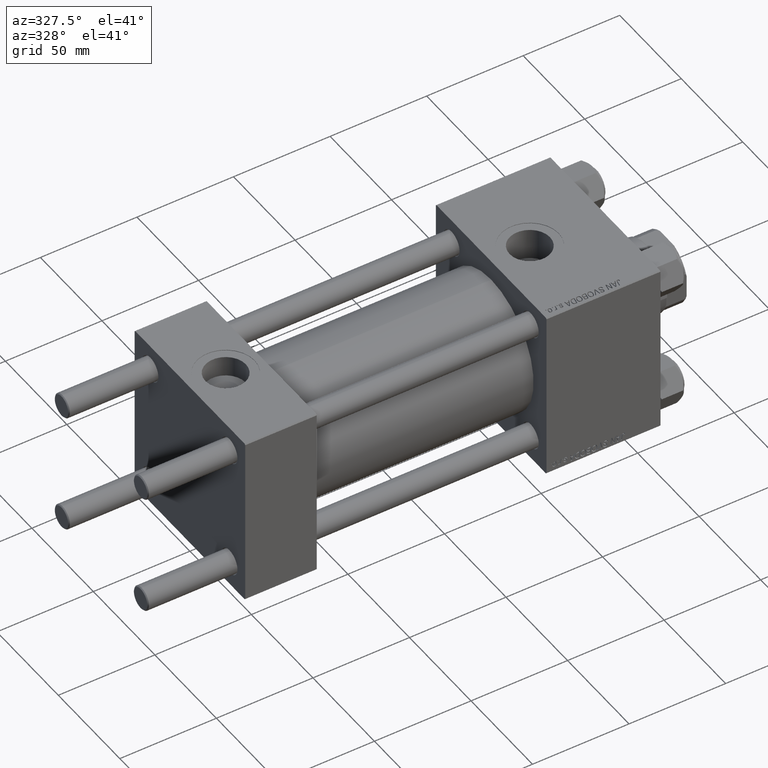
[diagram: clean part render]
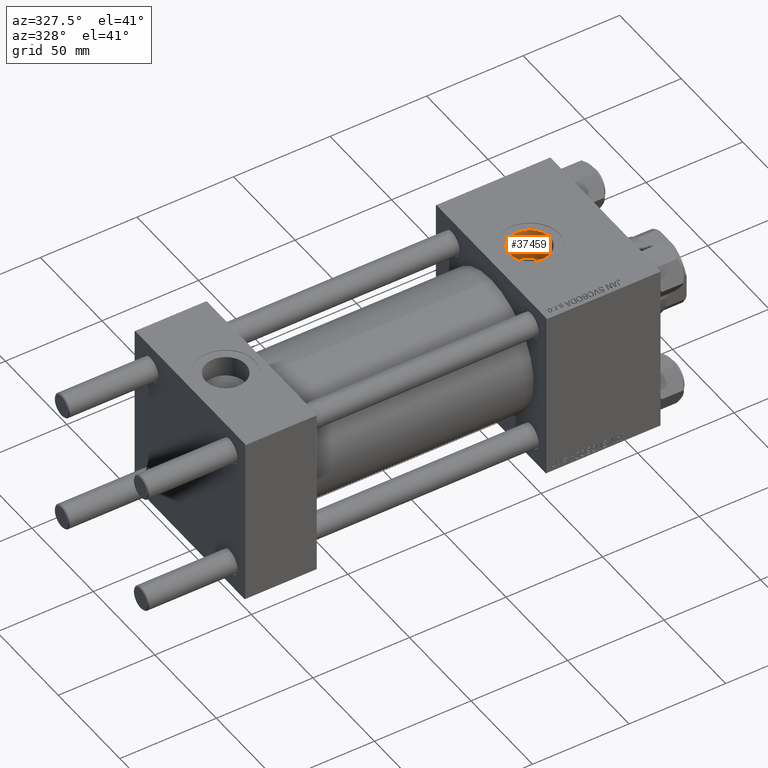
[diagram: same view with one face highlighted and labeled with its STEP entity id]
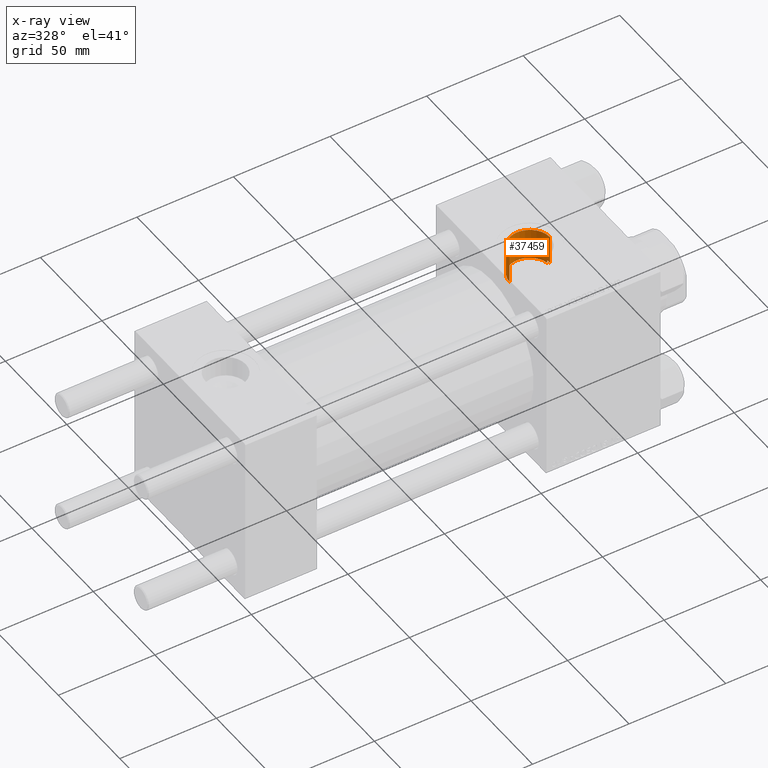
[diagram: x-ray of the same camera — body ghosted, the highlighted face saturated]
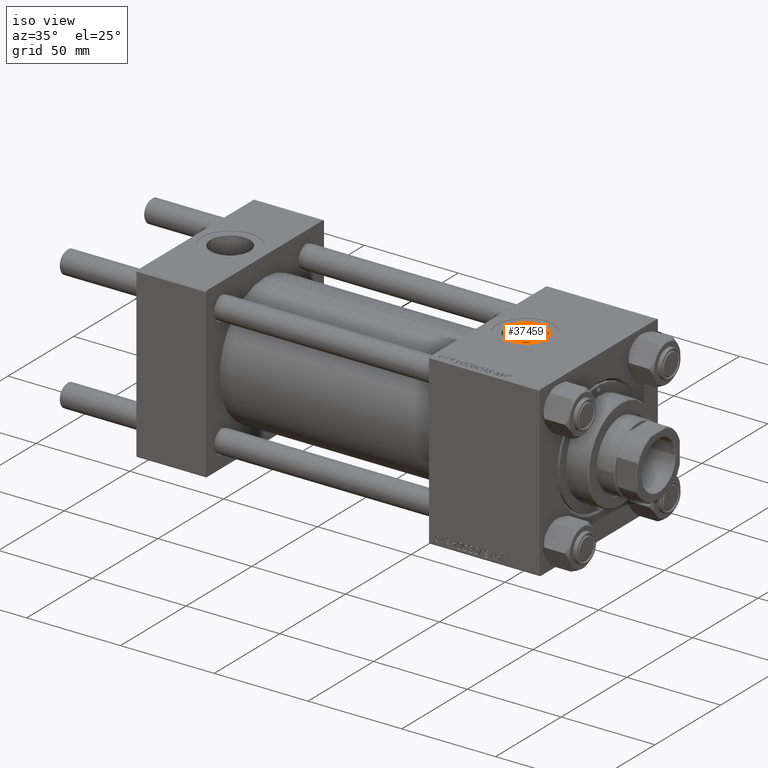
[diagram: same view with one face highlighted and labeled with its STEP entity id]
A machine part, auxiliary view. The second image highlights one B-rep face of the part: STEP entity #37459.
The next image is the same camera in x-ray: the body ghosted, the highlighted face saturated — about 0% of this face is hidden behind the body in this view.
A second angle (iso view) of the same face is appended — the face is thin or edge-on in the first view.
In plain terms, the highlighted cylindrical surface (edge-blend (fillet) strip) has radius 10.48 mm, axis along (0, 0, -1).
Its self-contained STEP definition (entity closure, byte-faithful):
#2048 = EDGE_LOOP ( 'NONE', ( #21680, #28371, #16074, #42260, #23046, #37123 ) ) ;
#2883 = AXIS2_PLACEMENT_3D ( 'NONE', #9613, #21236, #5811 ) ;
#3537 = CARTESIAN_POINT ( 'NONE',  ( 176.0000000000000000, -6.938893903907227589E-15, 44.79999999999999005 ) ) ;
#4460 = CIRCLE ( 'NONE', #2883, 10.47999999999998977 ) ;
#4972 = LINE ( 'NONE', #30755, #30237 ) ;
#5255 = CARTESIAN_POINT ( 'NONE',  ( 186.2999999999999829, 1.934011375354239171, 28.59999999999998721 ) ) ;
#5494 = VERTEX_POINT ( 'NONE', #30910 ) ;
#5811 = DIRECTION ( 'NONE',  ( 1.000000000000000000, 0.000000000000000000, 0.000000000000000000 ) ) ;
#6092 = LINE ( 'NONE', #28830, #8050 ) ;
#6727 = VECTOR ( 'NONE', #40649, 1000.000000000000000 ) ;
#6921 = CARTESIAN_POINT ( 'NONE',  ( 176.0000000000000000, -6.938893903907227589E-15, 67.79999999999999716 ) ) ;
#7336 = CARTESIAN_POINT ( 'NONE',  ( 186.2999999999999829, 1.934011375354239171, 29.93759509379469819 ) ) ;
#8050 = VECTOR ( 'NONE', #17961, 1000.000000000000000 ) ;
#8295 = EDGE_CURVE ( 'NONE', #32887, #9996, #24501, .T. ) ;
#8693 = CARTESIAN_POINT ( 'NONE',  ( 186.4799999999999898, -5.655464058400803678E-15, 44.79999999999999005 ) ) ;
#9082 = CARTESIAN_POINT ( 'NONE',  ( 186.4210485436892952, 1.289340916902827150, 29.97924172559974565 ) ) ;
#9173 = AXIS2_PLACEMENT_3D ( 'NONE', #6921, #37739, #37981 ) ;
#9613 = CARTESIAN_POINT ( 'NONE',  ( 176.0000000000000000, -6.938893903907227589E-15, 28.59999999999998721 ) ) ;
#9996 = VERTEX_POINT ( 'NONE', #5255 ) ;
#12742 = CARTESIAN_POINT ( 'NONE',  ( 186.4799999999999898, 3.352779466116923030E-15, 30.00000000000000000 ) ) ;
#13499 = CARTESIAN_POINT ( 'NONE',  ( 165.5200000000000102, -6.938893903907227589E-15, 28.59999999999998721 ) ) ;
#14085 = B_SPLINE_CURVE_WITH_KNOTS ( 'NONE', 3,
 ( #24480, #9082, #43947, #35855 ),
 .UNSPECIFIED., .F., .F.,
 ( 4, 4 ),
 ( 0.000000000000000000, 0.001934011375354235994 ),
 .UNSPECIFIED. ) ;
#15396 = DIRECTION ( 'NONE',  ( 1.000000000000000000, 0.000000000000000000, 0.000000000000000000 ) ) ;
#15992 = EDGE_CURVE ( 'NONE', #49339, #34468, #4972, .T. ) ;
#16074 = ORIENTED_EDGE ( 'NONE', *, *, #25857, .T. ) ;
#17399 = EDGE_CURVE ( 'NONE', #9996, #32438, #4460, .T. ) ;
#17961 = DIRECTION ( 'NONE',  ( 0.000000000000000000, 0.000000000000000000, -1.000000000000000000 ) ) ;
#19434 = DIRECTION ( 'NONE',  ( -0.000000000000000000, -0.000000000000000000, -1.000000000000000000 ) ) ;
#19952 = CIRCLE ( 'NONE', #40097, 10.47999999999998977 ) ;
#21236 = DIRECTION ( 'NONE',  ( 0.000000000000000000, 0.000000000000000000, 1.000000000000000000 ) ) ;
#21680 = ORIENTED_EDGE ( 'NONE', *, *, #15992, .F. ) ;
#23046 = ORIENTED_EDGE ( 'NONE', *, *, #8295, .F. ) ;
#24480 = CARTESIAN_POINT ( 'NONE',  ( 186.2999999999999829, 1.934011375354239171, 29.93759509379469819 ) ) ;
#24501 = LINE ( 'NONE', #40155, #6727 ) ;
#25857 = EDGE_CURVE ( 'NONE', #5494, #32438, #6092, .T. ) ;
#28371 = ORIENTED_EDGE ( 'NONE', *, *, #47189, .F. ) ;
#28830 = CARTESIAN_POINT ( 'NONE',  ( 165.5200000000000102, -6.938893903907227589E-15, 67.79999999999999716 ) ) ;
#30237 = VECTOR ( 'NONE', #46172, 1000.000000000000000 ) ;
#30755 = CARTESIAN_POINT ( 'NONE',  ( 186.4799999999999898, -5.655464058400802889E-15, 67.79999999999999716 ) ) ;
#30910 = CARTESIAN_POINT ( 'NONE',  ( 165.5200000000000102, -6.938893903907227589E-15, 44.79999999999999005 ) ) ;
#32438 = VERTEX_POINT ( 'NONE', #13499 ) ;
#32887 = VERTEX_POINT ( 'NONE', #7336 ) ;
#34468 = VERTEX_POINT ( 'NONE', #12742 ) ;
#35011 = EDGE_CURVE ( 'NONE', #32887, #34468, #14085, .T. ) ;
#35855 = CARTESIAN_POINT ( 'NONE',  ( 186.4799999999999898, 3.352779466116923030E-15, 30.00000000000000000 ) ) ;
#36991 = FACE_OUTER_BOUND ( 'NONE', #2048, .T. ) ;
#37123 = ORIENTED_EDGE ( 'NONE', *, *, #35011, .T. ) ;
#37459 = ADVANCED_FACE ( 'NONE', ( #36991 ), #41531, .F. ) ;
#37739 = DIRECTION ( 'NONE',  ( 0.000000000000000000, 0.000000000000000000, -1.000000000000000000 ) ) ;
#37981 = DIRECTION ( 'NONE',  ( -1.000000000000000000, 0.000000000000000000, 0.000000000000000000 ) ) ;
#40097 = AXIS2_PLACEMENT_3D ( 'NONE', #3537, #19434, #15396 ) ;
#40155 = CARTESIAN_POINT ( 'NONE',  ( 186.2999999999999829, 1.934011375354239171, 67.79999999999999716 ) ) ;
#40649 = DIRECTION ( 'NONE',  ( 0.000000000000000000, 0.000000000000000000, -1.000000000000000000 ) ) ;
#41531 = CYLINDRICAL_SURFACE ( 'NONE', #9173, 10.47999999999998977 ) ;
#42260 = ORIENTED_EDGE ( 'NONE', *, *, #17399, .F. ) ;
#43947 = CARTESIAN_POINT ( 'NONE',  ( 186.4799999999999898, 0.6446704584514152403, 30.00000000000000000 ) ) ;
#46172 = DIRECTION ( 'NONE',  ( 0.000000000000000000, 0.000000000000000000, -1.000000000000000000 ) ) ;
#47189 = EDGE_CURVE ( 'NONE', #5494, #49339, #19952, .T. ) ;
#49339 = VERTEX_POINT ( 'NONE', #8693 ) ;